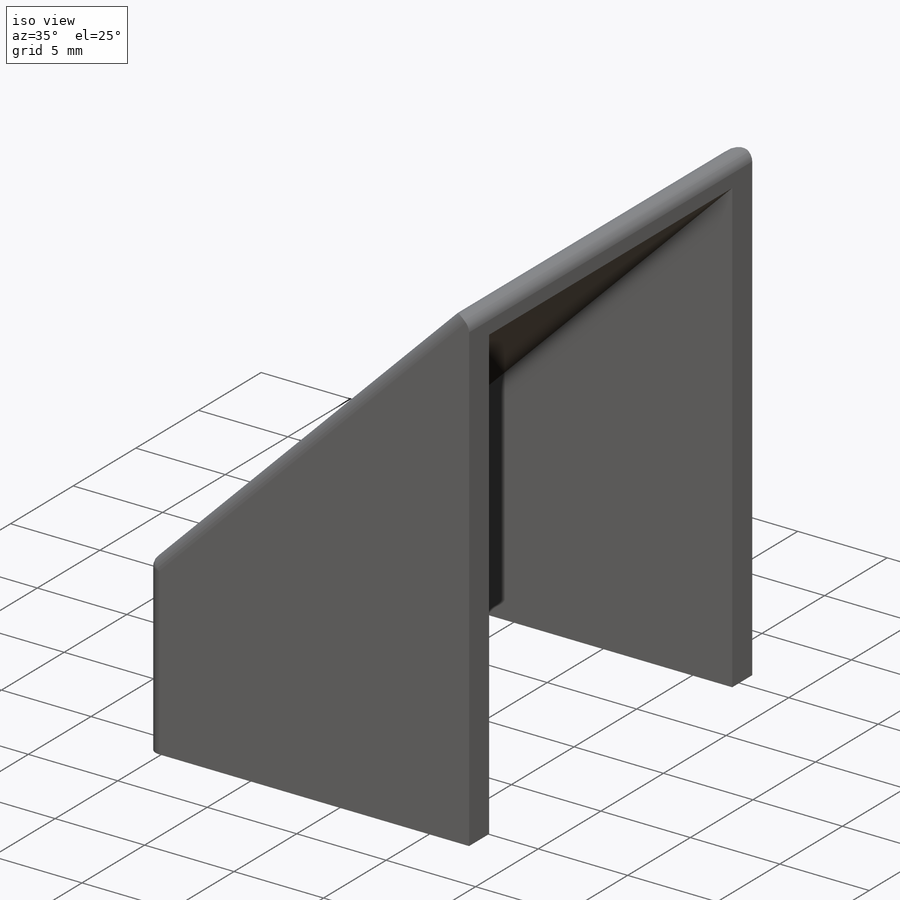
[diagram: iso view]
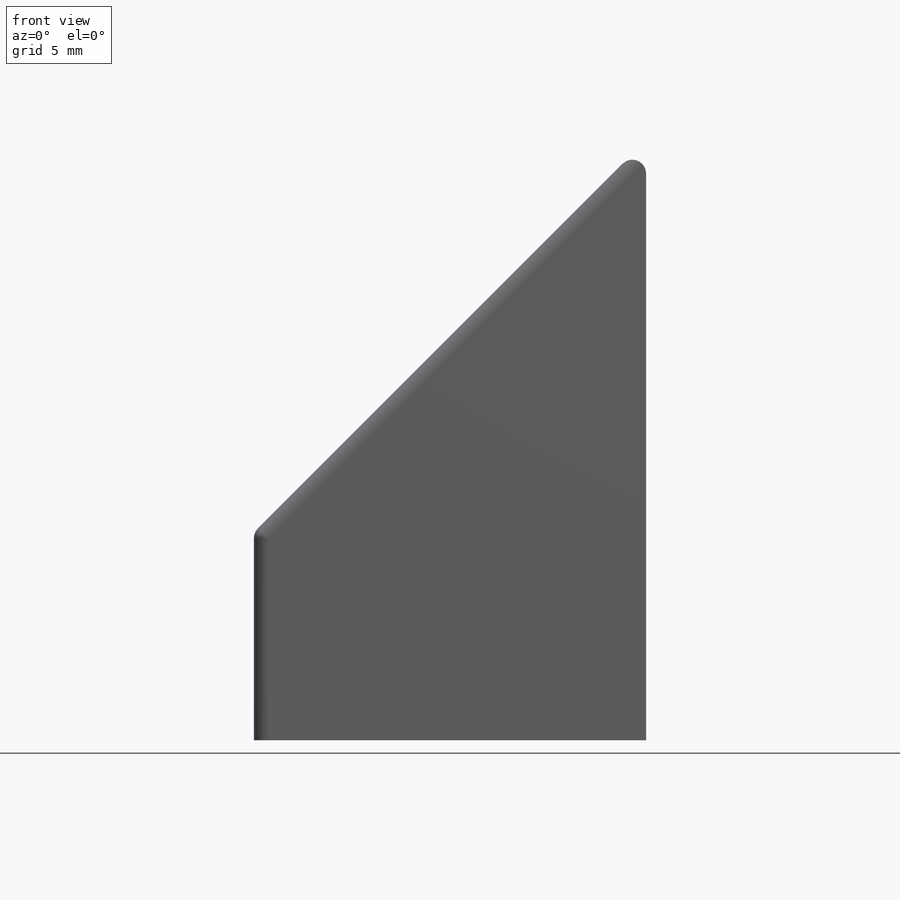
[diagram: front view]
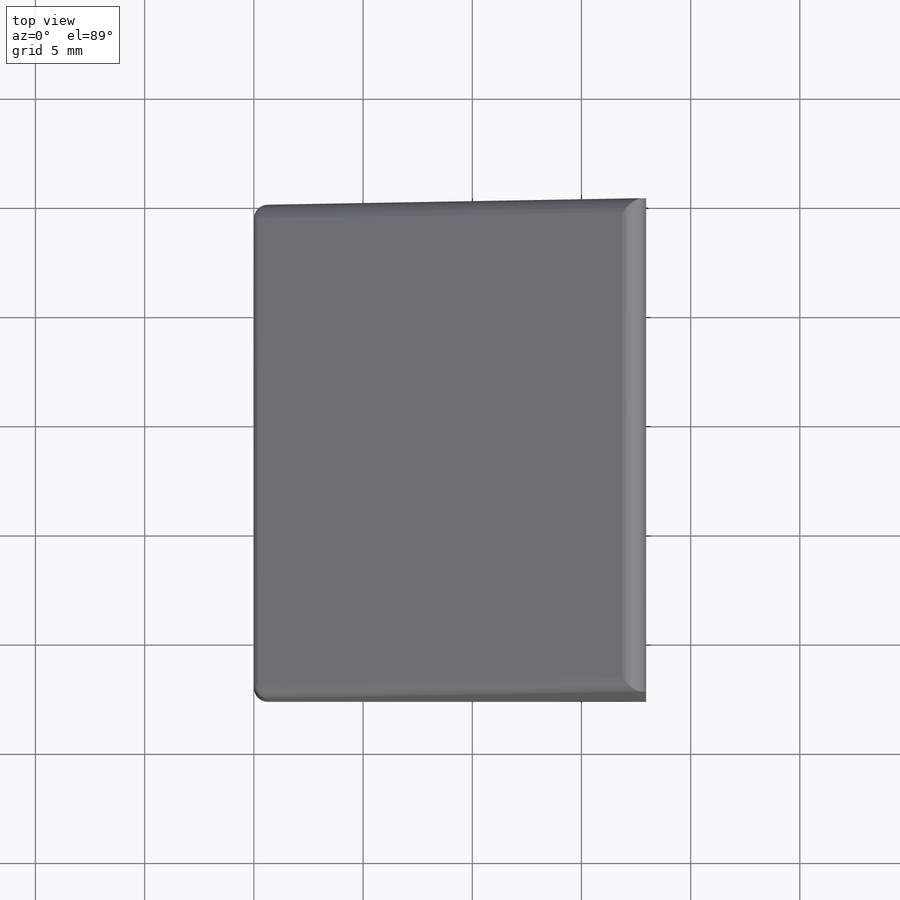
[diagram: top view]
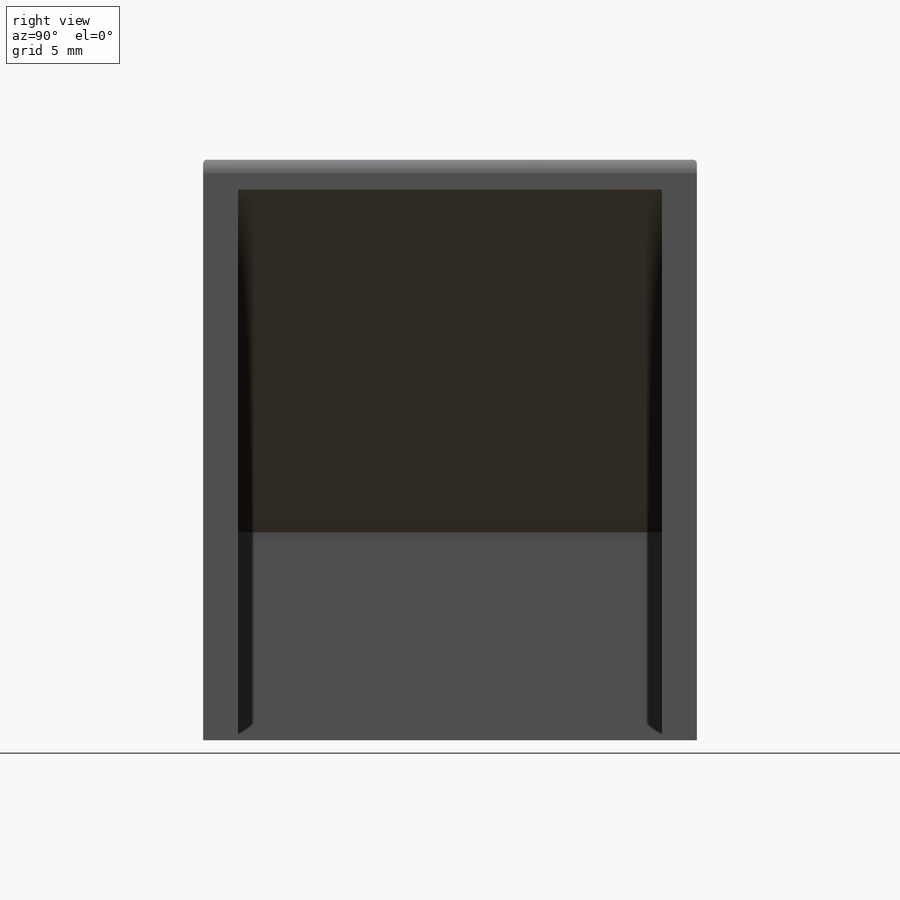
[diagram: right view]
SOLIDWORKS PART (.sldprt)
format: sldprt  version: not decoded by parser v0  size: 166,400 bytes
history: native  units: mm
features: sketch x3, extrude x2, material x1, cut_extrude x1, fillet x1 (+12 scaffold rows collapsed)
feature tree (20):
  scaffold x12  (default folders/planes/origin — collapsed)
  material  "Material <not specified>"
  sketch  "Sketch1"  dims[c1.D1=25.4mm c1.D2=~21.397867mm c2.D2=45.0deg]
  extrude  "Boss-Extrude1"  Depth=22.606mm
  sketch  "Sketch2"  dims[D1=1.6mm]
  cut_extrude  "Cut-Extrude1"  Depth=1.6mm
  sketch  "Sketch3"
  extrude  "Boss-Extrude2"  Depth=9.525mm
  fillet  "Fillet1"  Radius=0.635mm
decode coverage: 6 of 7 modeling features carry decoded parameters
note: ~ marks probable driven/reference dimensions
note: suppression state not decoded; provenance and decode notes live in map.json
